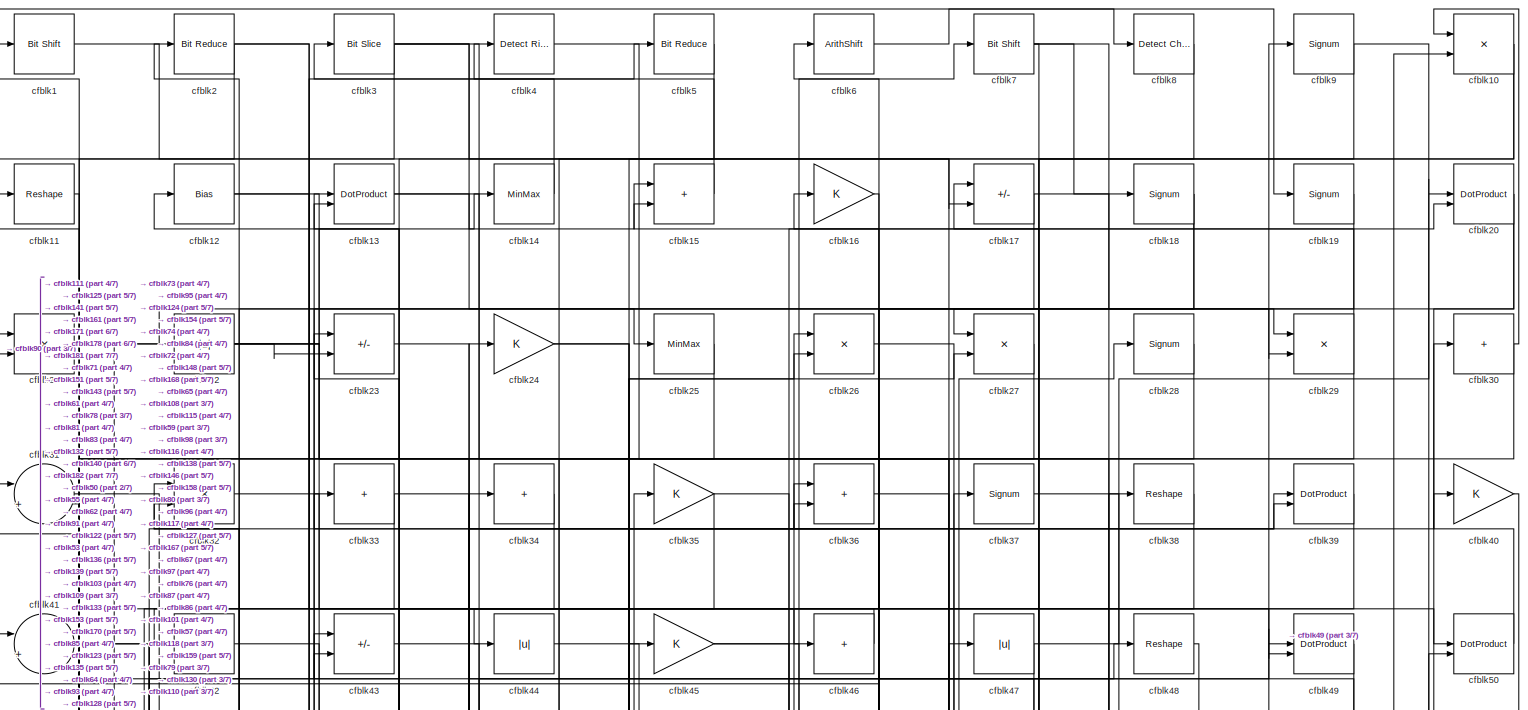
[diagram: root canvas - part 1/7, full width, top band]
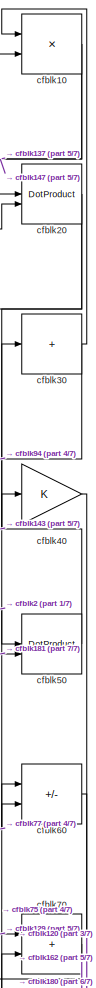
[diagram: root canvas - part 2/7, top right region]
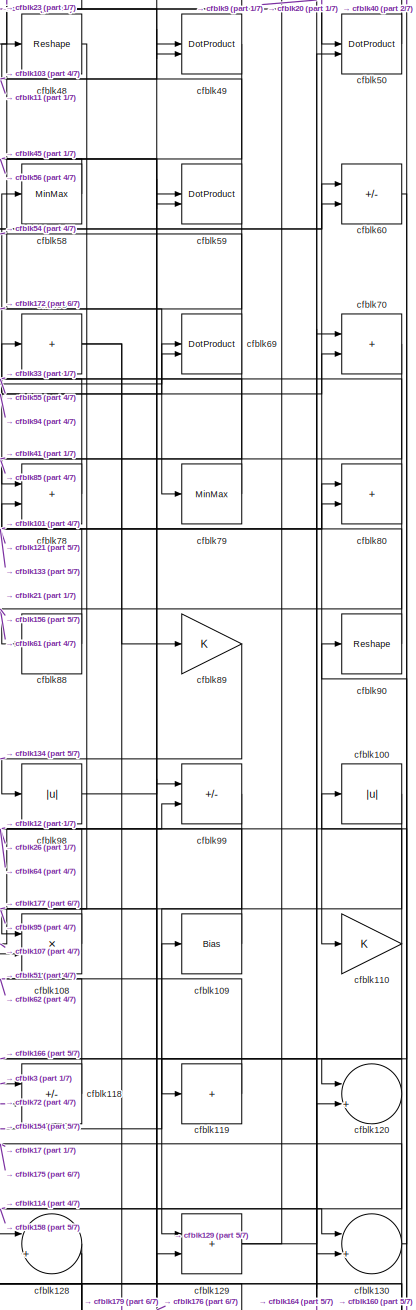
[diagram: root canvas - part 3/7, middle right region]
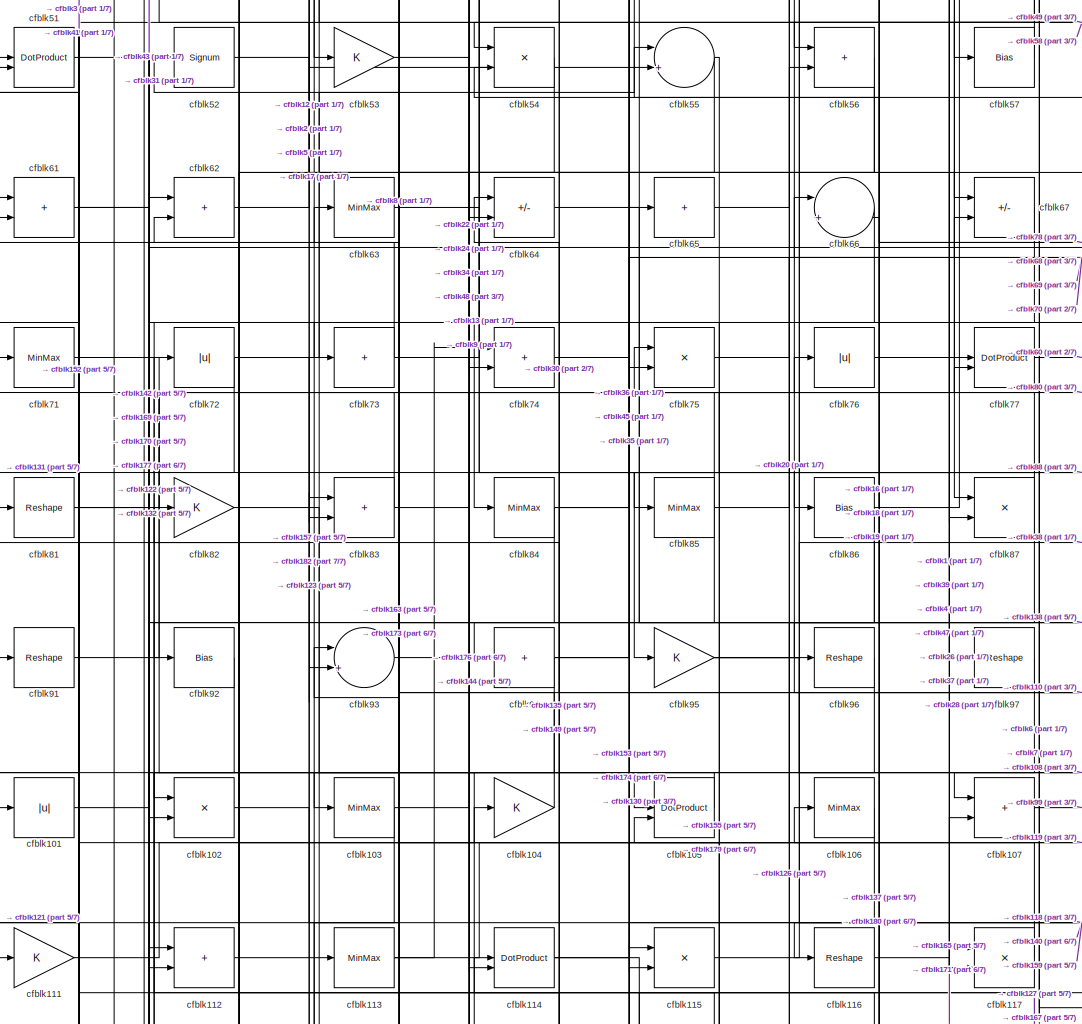
[diagram: root canvas - part 4/7, central region]
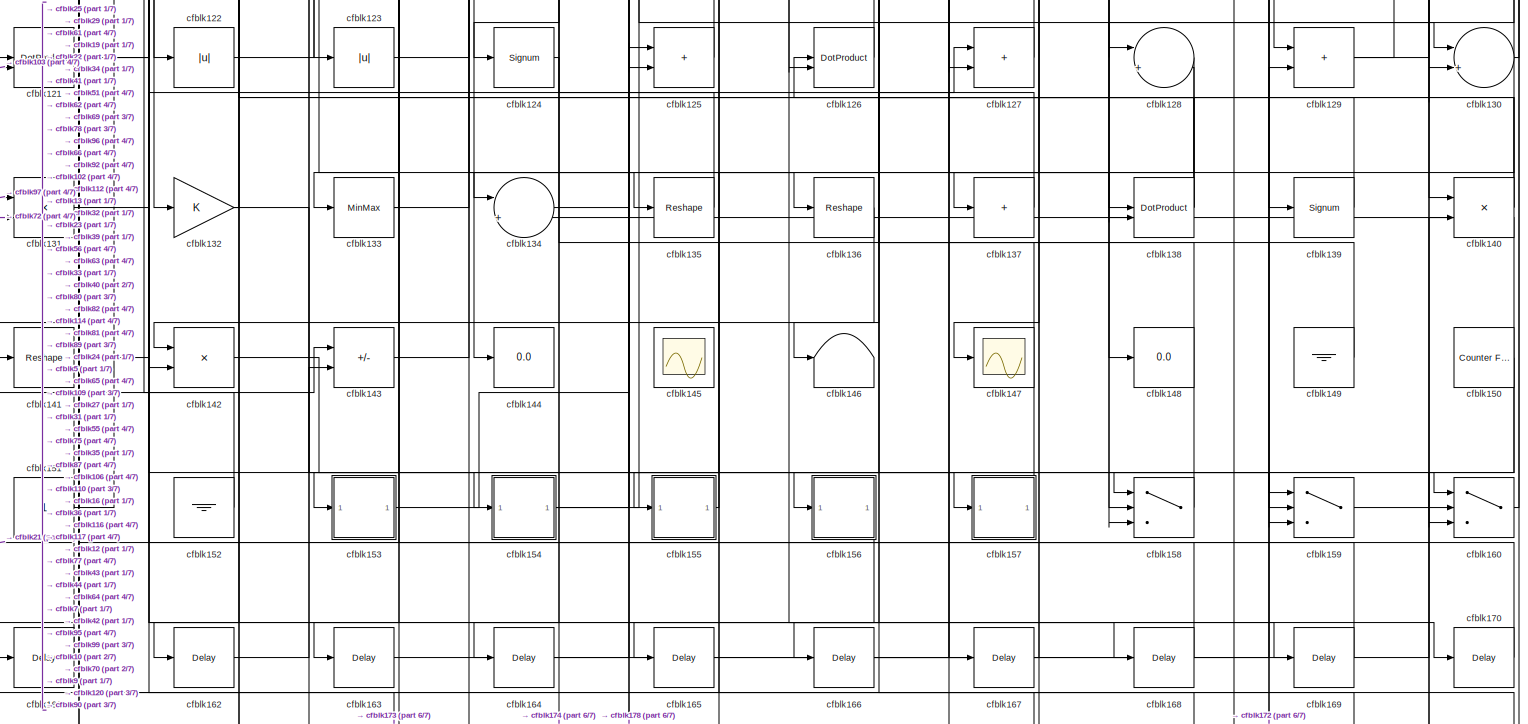
[diagram: root canvas - part 5/7, full width, bottom band]
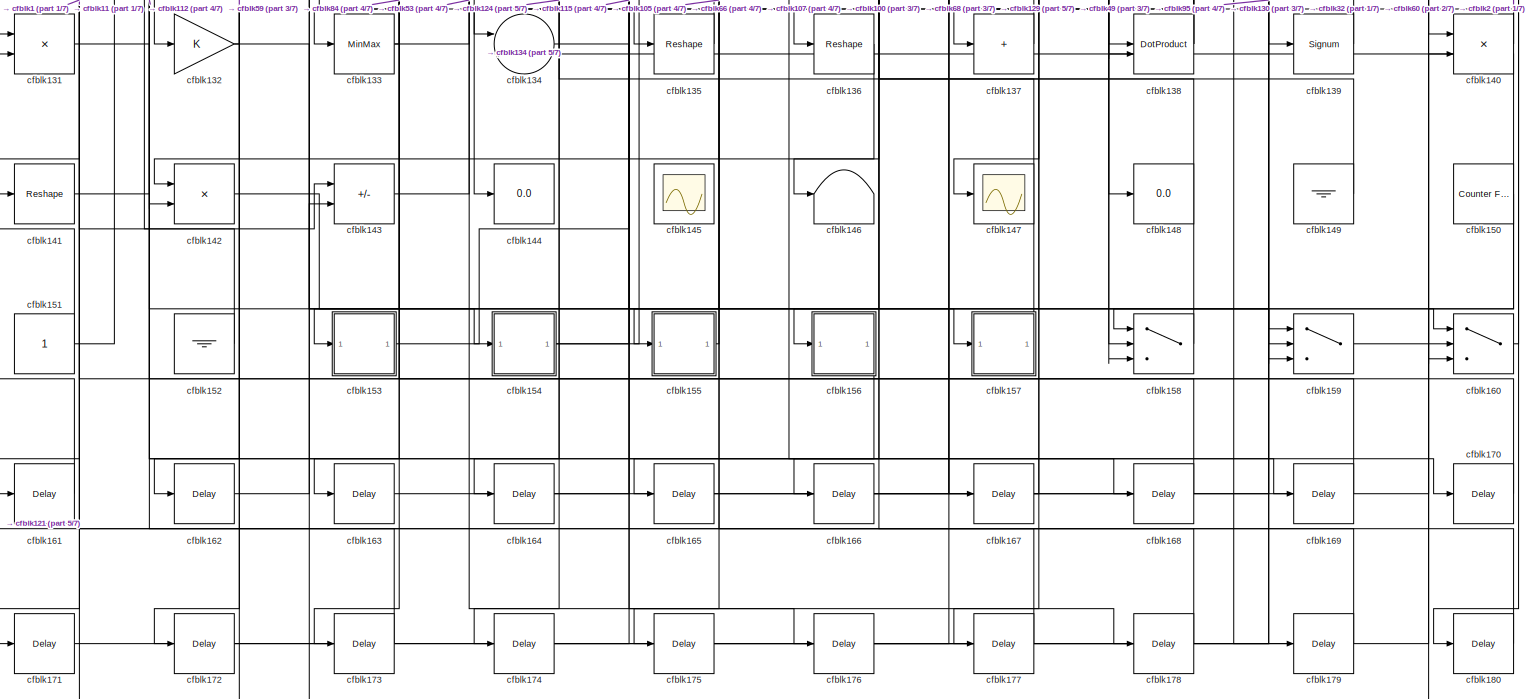
[diagram: root canvas - part 6/7, full width, bottom band]
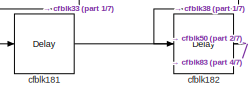
[diagram: root canvas - part 7/7, bottom left region]
MODEL slx_84282dd93710
KIND model
CONFIG AbsTol = auto
CONFIG EnableMultiTasking = off
CONFIG FixedStep = auto
CONFIG MaxStep = auto
CONFIG MinStep = auto
CONFIG RelTol = 1e-3
CONFIG SampleTimeConstraint = Unconstrained
CONFIG SolverName = VariableStepAuto
CONFIG StartTime = 0.0
CONFIG StopTime = 10.0
BLOCK [Reference] cfblk1  REF=hdlsllib/Logic and Bit
Operations/Bit Shift
  SourceBlock = hdlsllib/Logic and Bit\nOperations/Bit Shift
  SourceType = Bit Shift
BLOCK [Product] cfblk10
  Inputs = */
  RndMeth = Zero
  SaturateOnIntegerOverflow = on
BLOCK [Abs] cfblk100
  SaturateOnIntegerOverflow = off
BLOCK [Abs] cfblk101
  SaturateOnIntegerOverflow = off
BLOCK [Product] cfblk102
  Inputs = */
  RndMeth = Zero
  SaturateOnIntegerOverflow = on
BLOCK [MinMax] cfblk103
BLOCK [Gain] cfblk104
BLOCK [DotProduct] cfblk105
  OutDataTypeStr = Inherit: Inherit via internal rule
BLOCK [MinMax] cfblk106
BLOCK [Sum] cfblk107
  IconShape = rectangular
BLOCK [Product] cfblk108
  Inputs = */
  RndMeth = Zero
  SaturateOnIntegerOverflow = on
BLOCK [Bias] cfblk109
  Bias = 0.0
  SaturateOnIntegerOverflow = off
BLOCK [Reshape] cfblk11
BLOCK [Gain] cfblk110
BLOCK [Gain] cfblk111
BLOCK [Sum] cfblk112
  IconShape = rectangular
BLOCK [MinMax] cfblk113
BLOCK [DotProduct] cfblk114
  OutDataTypeStr = Inherit: Inherit via internal rule
BLOCK [Product] cfblk115
  Inputs = */
  RndMeth = Zero
  SaturateOnIntegerOverflow = on
BLOCK [Reshape] cfblk116
BLOCK [Product] cfblk117
  Inputs = */
  RndMeth = Zero
  SaturateOnIntegerOverflow = on
BLOCK [Sum] cfblk118
  IconShape = rectangular
  Inputs = +-
BLOCK [Sum] cfblk119
  IconShape = rectangular
  Inputs = +
BLOCK [Bias] cfblk12
  Bias = 0.0
  SaturateOnIntegerOverflow = off
BLOCK [Sum] cfblk120
  Inputs = |++
BLOCK [DotProduct] cfblk121
  OutDataTypeStr = Inherit: Inherit via internal rule
BLOCK [Abs] cfblk122
  SaturateOnIntegerOverflow = off
BLOCK [Abs] cfblk123
  SaturateOnIntegerOverflow = off
BLOCK [Signum] cfblk124
BLOCK [Sum] cfblk125
  IconShape = rectangular
BLOCK [DotProduct] cfblk126
  OutDataTypeStr = Inherit: Inherit via internal rule
BLOCK [Sum] cfblk127
  IconShape = rectangular
BLOCK [Sum] cfblk128
  Inputs = |++
BLOCK [Sum] cfblk129
  IconShape = rectangular
BLOCK [DotProduct] cfblk13
  OutDataTypeStr = Inherit: Inherit via internal rule
BLOCK [Sum] cfblk130
  Inputs = |++
BLOCK [Product] cfblk131
  Inputs = */
  RndMeth = Zero
  SaturateOnIntegerOverflow = on
BLOCK [Gain] cfblk132
BLOCK [MinMax] cfblk133
BLOCK [Sum] cfblk134
  Inputs = |++
BLOCK [Reshape] cfblk135
BLOCK [Reshape] cfblk136
BLOCK [Sum] cfblk137
  IconShape = rectangular
  Inputs = +
BLOCK [DotProduct] cfblk138
  OutDataTypeStr = Inherit: Inherit via internal rule
BLOCK [Signum] cfblk139
BLOCK [MinMax] cfblk14
BLOCK [Product] cfblk140
  Inputs = */
  RndMeth = Zero
  SaturateOnIntegerOverflow = on
BLOCK [Reshape] cfblk141
BLOCK [Product] cfblk142
  Inputs = */
  RndMeth = Zero
  SaturateOnIntegerOverflow = on
BLOCK [Sum] cfblk143
  IconShape = rectangular
  Inputs = +-
BLOCK [Display] cfblk144
  Decimation = 1
BLOCK [Scope] cfblk145
  Floating = on
  NumInputPorts = 1
  ScopeSpecificationString = Simulink.scopes.TimeScopeBlockCfg('CurrentConfiguration', extmgr.ConfigurationSet(extmgr.Configuration('Core','General UI',true,'FigureColor',[0.156862745098039 0.156862745098039 0.156862745098039]),extmgr.Configuration('Core','Source UI',true),extmgr.Configuration('Sources','WiredSimulink',true,'DataLoggingVariableName','ScopeData1','DataLoggingSaveFormat','StructureWithTime','DataLoggingLimitDat...<+2713ch>
BLOCK [Terminator] cfblk146
BLOCK [Scope] cfblk147
  Floating = off
  NumInputPorts = 1
  ScopeSpecificationString = Simulink.scopes.TimeScopeBlockCfg('CurrentConfiguration', extmgr.ConfigurationSet(extmgr.Configuration('Core','General UI',true),extmgr.Configuration('Core','Source UI',true),extmgr.Configuration('Sources','WiredSimulink',true,'DataLoggingVariableName','ScopeData2','DataLoggingSaveFormat','Array','DataLoggingLimitDataPoints',true,'DataLoggingDecimation','1'),extmgr.Configuration('Visuals','Time Do...<+868ch>
BLOCK [Display] cfblk148
  Decimation = 1
BLOCK [Ground] cfblk149
BLOCK [Sum] cfblk15
  IconShape = rectangular
BLOCK [Reference] cfblk150  REF=hdlsllib/Sources/Counter
Free-Running
  SourceBlock = hdlsllib/Sources/Counter\nFree-Running
  SourceType = Counter Free-Running
BLOCK [Constant] cfblk151
  SampleTime = -1
BLOCK [Ground] cfblk152
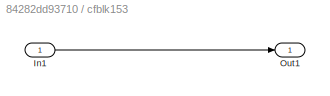
BLOCK [SubSystem] cfblk153
  LibrarySourceBlock = hdlsllib/Ports &\nSubsystems/Subsystem
BLOCK [Inport] cfblk153/In1
BLOCK [Outport] cfblk153/Out1
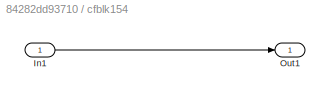
BLOCK [SubSystem] cfblk154
  LibrarySourceBlock = hdlsllib/Ports &\nSubsystems/Subsystem
BLOCK [Inport] cfblk154/In1
BLOCK [Outport] cfblk154/Out1
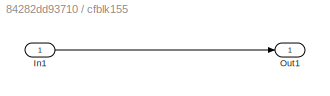
BLOCK [SubSystem] cfblk155
  LibrarySourceBlock = hdlsllib/Ports &\nSubsystems/Subsystem
BLOCK [Inport] cfblk155/In1
BLOCK [Outport] cfblk155/Out1
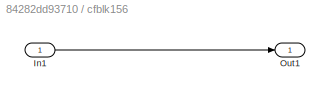
BLOCK [SubSystem] cfblk156
  LibrarySourceBlock = hdlsllib/Ports &\nSubsystems/Subsystem
BLOCK [Inport] cfblk156/In1
BLOCK [Outport] cfblk156/Out1
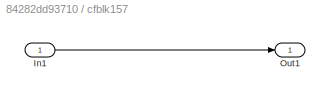
BLOCK [SubSystem] cfblk157
  LibrarySourceBlock = hdlsllib/Ports &\nSubsystems/Subsystem
BLOCK [Inport] cfblk157/In1
BLOCK [Outport] cfblk157/Out1
BLOCK [Switch] cfblk158
  InputSameDT = off
  SaturateOnIntegerOverflow = off
BLOCK [Switch] cfblk159
  InputSameDT = off
  SaturateOnIntegerOverflow = off
BLOCK [Gain] cfblk16
BLOCK [Switch] cfblk160
  InputSameDT = off
  SaturateOnIntegerOverflow = off
BLOCK [Delay] cfblk161
  InputPortMap = u0
  SampleTime = 1
BLOCK [Delay] cfblk162
  InputPortMap = u0
  SampleTime = 1
BLOCK [Delay] cfblk163
  InputPortMap = u0
  SampleTime = 1
BLOCK [Delay] cfblk164
  InputPortMap = u0
  SampleTime = 1
BLOCK [Delay] cfblk165
  InputPortMap = u0
  SampleTime = 1
BLOCK [Delay] cfblk166
  InputPortMap = u0
  SampleTime = 1
BLOCK [Delay] cfblk167
  InputPortMap = u0
  SampleTime = 1
BLOCK [Delay] cfblk168
  InputPortMap = u0
  SampleTime = 1
BLOCK [Delay] cfblk169
  InputPortMap = u0
  SampleTime = 1
BLOCK [Sum] cfblk17
  IconShape = rectangular
  Inputs = +-
BLOCK [Delay] cfblk170
  InputPortMap = u0
  SampleTime = 1
BLOCK [Delay] cfblk171
  InputPortMap = u0
  SampleTime = 1
BLOCK [Delay] cfblk172
  InputPortMap = u0
  SampleTime = 1
BLOCK [Delay] cfblk173
  InputPortMap = u0
  SampleTime = 1
BLOCK [Delay] cfblk174
  InputPortMap = u0
  SampleTime = 1
BLOCK [Delay] cfblk175
  InputPortMap = u0
  SampleTime = 1
BLOCK [Delay] cfblk176
  InputPortMap = u0
  SampleTime = 1
BLOCK [Delay] cfblk177
  InputPortMap = u0
  SampleTime = 1
BLOCK [Delay] cfblk178
  InputPortMap = u0
  SampleTime = 1
BLOCK [Delay] cfblk179
  InputPortMap = u0
  SampleTime = 1
BLOCK [Signum] cfblk18
BLOCK [Delay] cfblk180
  InputPortMap = u0
  SampleTime = 1
BLOCK [Delay] cfblk181
  InputPortMap = u0
  SampleTime = 1
BLOCK [Delay] cfblk182
  InputPortMap = u0
  SampleTime = 1
BLOCK [Signum] cfblk19
BLOCK [Reference] cfblk2  REF=hdlsllib/Logic and Bit
Operations/Bit Reduce
  SourceBlock = hdlsllib/Logic and Bit\nOperations/Bit Reduce
  SourceType = Bit Reduce
BLOCK [DotProduct] cfblk20
  OutDataTypeStr = Inherit: Inherit via internal rule
BLOCK [Product] cfblk21
  Inputs = */
  RndMeth = Zero
  SaturateOnIntegerOverflow = on
BLOCK [Abs] cfblk22
  SaturateOnIntegerOverflow = off
BLOCK [Sum] cfblk23
  IconShape = rectangular
  Inputs = +-
BLOCK [Gain] cfblk24
BLOCK [MinMax] cfblk25
BLOCK [Product] cfblk26
  Inputs = */
  RndMeth = Zero
  SaturateOnIntegerOverflow = on
BLOCK [Product] cfblk27
  Inputs = */
  RndMeth = Zero
  SaturateOnIntegerOverflow = on
BLOCK [Signum] cfblk28
BLOCK [Product] cfblk29
  Inputs = */
  RndMeth = Zero
  SaturateOnIntegerOverflow = on
BLOCK [Reference] cfblk3  REF=hdlsllib/Logic and Bit
Operations/Bit Slice
  SourceBlock = hdlsllib/Logic and Bit\nOperations/Bit Slice
  SourceType = Bit Slice
BLOCK [Sum] cfblk30
  IconShape = rectangular
  Inputs = +
BLOCK [Sum] cfblk31
  Inputs = |++
BLOCK [Product] cfblk32
  Inputs = */
  RndMeth = Zero
  SaturateOnIntegerOverflow = on
BLOCK [Sum] cfblk33
  IconShape = rectangular
  Inputs = +
BLOCK [Sum] cfblk34
  IconShape = rectangular
  Inputs = +
BLOCK [Gain] cfblk35
BLOCK [Sum] cfblk36
  IconShape = rectangular
BLOCK [Signum] cfblk37
BLOCK [Reshape] cfblk38
BLOCK [DotProduct] cfblk39
  OutDataTypeStr = Inherit: Inherit via internal rule
BLOCK [Reference] cfblk4  REF=hdlsllib/Logic and Bit
Operations/Detect Rise
Positive
  SourceBlock = hdlsllib/Logic and Bit\nOperations/Detect Rise\nPositive
  SourceType = Detect Rise Positive
BLOCK [Gain] cfblk40
BLOCK [Sum] cfblk41
  Inputs = |++
BLOCK [Sum] cfblk42
  IconShape = rectangular
  Inputs = +
BLOCK [Sum] cfblk43
  IconShape = rectangular
  Inputs = +-
BLOCK [Abs] cfblk44
  SaturateOnIntegerOverflow = off
BLOCK [Gain] cfblk45
BLOCK [Sum] cfblk46
  IconShape = rectangular
  Inputs = +
BLOCK [Abs] cfblk47
  SaturateOnIntegerOverflow = off
BLOCK [Reshape] cfblk48
BLOCK [DotProduct] cfblk49
  OutDataTypeStr = Inherit: Inherit via internal rule
BLOCK [Reference] cfblk5  REF=hdlsllib/Logic and Bit
Operations/Bit Reduce
  SourceBlock = hdlsllib/Logic and Bit\nOperations/Bit Reduce
  SourceType = Bit Reduce
BLOCK [DotProduct] cfblk50
  OutDataTypeStr = Inherit: Inherit via internal rule
BLOCK [DotProduct] cfblk51
  OutDataTypeStr = Inherit: Inherit via internal rule
BLOCK [Signum] cfblk52
BLOCK [Gain] cfblk53
BLOCK [Product] cfblk54
  Inputs = */
  RndMeth = Zero
  SaturateOnIntegerOverflow = on
BLOCK [Sum] cfblk55
  Inputs = |++
BLOCK [Sum] cfblk56
  IconShape = rectangular
BLOCK [Bias] cfblk57
  Bias = 0.0
  SaturateOnIntegerOverflow = off
BLOCK [MinMax] cfblk58
BLOCK [DotProduct] cfblk59
  OutDataTypeStr = Inherit: Inherit via internal rule
BLOCK [ArithShift] cfblk6
  BitShiftNumber = 8
  InputPortMap = u0
BLOCK [Sum] cfblk60
  IconShape = rectangular
  Inputs = +-
BLOCK [Sum] cfblk61
  IconShape = rectangular
BLOCK [Sum] cfblk62
  IconShape = rectangular
BLOCK [MinMax] cfblk63
BLOCK [Sum] cfblk64
  IconShape = rectangular
  Inputs = +-
BLOCK [Sum] cfblk65
  IconShape = rectangular
  Inputs = +
BLOCK [Sum] cfblk66
  Inputs = |++
BLOCK [Sum] cfblk67
  IconShape = rectangular
  Inputs = +-
BLOCK [Sum] cfblk68
  IconShape = rectangular
  Inputs = +
BLOCK [DotProduct] cfblk69
  OutDataTypeStr = Inherit: Inherit via internal rule
BLOCK [Reference] cfblk7  REF=hdlsllib/Logic and Bit
Operations/Bit Shift
  SourceBlock = hdlsllib/Logic and Bit\nOperations/Bit Shift
  SourceType = Bit Shift
BLOCK [Sum] cfblk70
  IconShape = rectangular
BLOCK [MinMax] cfblk71
BLOCK [Abs] cfblk72
  SaturateOnIntegerOverflow = off
BLOCK [Sum] cfblk73
  IconShape = rectangular
  Inputs = +
BLOCK [Sum] cfblk74
  IconShape = rectangular
BLOCK [Product] cfblk75
  Inputs = */
  RndMeth = Zero
  SaturateOnIntegerOverflow = on
BLOCK [Abs] cfblk76
  SaturateOnIntegerOverflow = off
BLOCK [DotProduct] cfblk77
  OutDataTypeStr = Inherit: Inherit via internal rule
BLOCK [Sum] cfblk78
  IconShape = rectangular
BLOCK [MinMax] cfblk79
BLOCK [Reference] cfblk8  REF=simulink/Logic and Bit
Operations/Detect
Change
  LibrarySourceBlock = hdlsllib/Logic and Bit\nOperations/Detect\nChange
  SourceBlock = simulink/Logic and Bit\nOperations/Detect\nChange
  SourceType = Detect Change
BLOCK [Sum] cfblk80
  IconShape = rectangular
BLOCK [Reshape] cfblk81
BLOCK [Gain] cfblk82
BLOCK [Sum] cfblk83
  IconShape = rectangular
BLOCK [MinMax] cfblk84
BLOCK [MinMax] cfblk85
BLOCK [Bias] cfblk86
  Bias = 0.0
  SaturateOnIntegerOverflow = off
BLOCK [Product] cfblk87
  Inputs = */
  RndMeth = Zero
  SaturateOnIntegerOverflow = on
BLOCK [Bias] cfblk88
  Bias = 0.0
  SaturateOnIntegerOverflow = off
BLOCK [Gain] cfblk89
BLOCK [Signum] cfblk9
BLOCK [Reshape] cfblk90
BLOCK [Reshape] cfblk91
BLOCK [Bias] cfblk92
  Bias = 0.0
  SaturateOnIntegerOverflow = off
BLOCK [Sum] cfblk93
  Inputs = |++
BLOCK [Sum] cfblk94
  IconShape = rectangular
  Inputs = +
BLOCK [Gain] cfblk95
BLOCK [Reshape] cfblk96
BLOCK [Reshape] cfblk97
BLOCK [Abs] cfblk98
  SaturateOnIntegerOverflow = off
BLOCK [Sum] cfblk99
  IconShape = rectangular
  Inputs = +-
LINE cfblk100:1 -> cfblk177:1
LINE cfblk101:1 -> cfblk80:1
LINE cfblk102:1 -> cfblk157:1
NET cfblk103:1 -> cfblk121:2, cfblk48:1
LINE cfblk104:1 -> cfblk52:1
LINE cfblk105:1 -> cfblk102:1
LINE cfblk106:1 -> cfblk115:2
LINE cfblk107:1 -> cfblk99:2
LINE cfblk108:1 -> cfblk26:1
LINE cfblk109:1 -> cfblk12:1
NET cfblk10:1 -> cfblk137:1, cfblk147:1
NET cfblk110:1 -> cfblk166:1, cfblk64:1
LINE cfblk111:1 -> cfblk104:1
LINE cfblk112:1 -> cfblk123:1
NET cfblk113:1 -> cfblk56:2, cfblk74:1
NET cfblk114:1 -> cfblk130:1, cfblk67:2
LINE cfblk115:1 -> cfblk7:1
LINE cfblk116:1 -> cfblk138:2
LINE cfblk117:1 -> cfblk93:1
LINE cfblk118:1 -> cfblk51:1
LINE cfblk119:1 -> cfblk62:2
LINE cfblk11:1 -> cfblk171:1
NET cfblk120:1 -> cfblk119:1, cfblk158:3
NET cfblk121:1 -> cfblk69:1, cfblk78:2
LINE cfblk122:1 -> cfblk13:1
LINE cfblk123:1 -> cfblk39:1
LINE cfblk124:1 -> cfblk174:1
LINE cfblk125:1 -> cfblk31:1
LINE cfblk126:1 -> cfblk82:1
LINE cfblk127:1 -> cfblk72:1
LINE cfblk128:1 -> cfblk164:1
NET cfblk129:1 -> cfblk10:2, cfblk70:1
NET cfblk12:1 -> cfblk127:2, cfblk67:1
NET cfblk130:1 -> cfblk100:1, cfblk175:1, cfblk17:1
LINE cfblk131:1 -> cfblk169:1
NET cfblk132:1 -> cfblk159:3, cfblk32:2
NET cfblk133:1 -> cfblk23:1, cfblk80:2
LINE cfblk134:1 -> cfblk178:1
LINE cfblk135:1 -> cfblk114:1
LINE cfblk136:1 -> cfblk142:1
LINE cfblk137:1 -> cfblk106:1
NET cfblk138:1 -> cfblk128:2, cfblk36:1, cfblk63:1
LINE cfblk139:1 -> cfblk126:1
NET cfblk13:1 -> cfblk15:2, cfblk95:1
NET cfblk140:1 -> cfblk2:1, cfblk32:1
LINE cfblk141:1 -> cfblk127:1
LINE cfblk142:1 -> cfblk160:1
LINE cfblk143:1 -> cfblk40:1
LINE cfblk149:1 -> cfblk81:1
LINE cfblk14:1 -> cfblk3:1
NET cfblk150:1 -> cfblk134:2, cfblk158:1, cfblk160:3
NET cfblk151:1 -> cfblk19:1, cfblk22:1
LINE cfblk152:1 -> cfblk61:2
LINE cfblk153/In1:1 -> cfblk153/Out1:1
LINE cfblk153:1 -> cfblk65:1
LINE cfblk154/In1:1 -> cfblk154/Out1:1
NET cfblk154:1 -> cfblk109:1, cfblk27:2
LINE cfblk155/In1:1 -> cfblk155/Out1:1
LINE cfblk155:1 -> cfblk75:1
LINE cfblk156/In1:1 -> cfblk156/Out1:1
LINE cfblk156:1 -> cfblk165:1
LINE cfblk157/In1:1 -> cfblk157/Out1:1
LINE cfblk157:1 -> cfblk66:2
LINE cfblk158:1 -> cfblk16:1
LINE cfblk159:1 -> cfblk160:2
LINE cfblk15:1 -> cfblk4:1
LINE cfblk160:1 -> cfblk90:1
LINE cfblk161:1 -> cfblk21:1
LINE cfblk162:1 -> cfblk143:2
LINE cfblk163:1 -> cfblk125:1
LINE cfblk164:1 -> cfblk120:2
LINE cfblk165:1 -> cfblk117:1
LINE cfblk166:1 -> cfblk99:1
LINE cfblk167:1 -> cfblk77:2
LINE cfblk168:1 -> cfblk31:2
LINE cfblk169:1 -> cfblk62:1
LINE cfblk16:1 -> cfblk86:1
LINE cfblk170:1 -> cfblk13:2
LINE cfblk171:1 -> cfblk107:2
LINE cfblk172:1 -> cfblk129:2
LINE cfblk173:1 -> cfblk121:1
LINE cfblk174:1 -> cfblk115:1
LINE cfblk175:1 -> cfblk140:2
LINE cfblk176:1 -> cfblk49:1
LINE cfblk177:1 -> cfblk112:1
LINE cfblk178:1 -> cfblk1:1
LINE cfblk179:1 -> cfblk105:2
NET cfblk17:1 -> cfblk29:2, cfblk53:1
LINE cfblk180:1 -> cfblk66:1
LINE cfblk181:1 -> cfblk50:2
LINE cfblk182:1 -> cfblk83:1
NET cfblk18:1 -> cfblk42:1, cfblk96:1
LINE cfblk19:1 -> cfblk116:1
LINE cfblk1:1 -> cfblk117:2
NET cfblk20:1 -> cfblk110:1, cfblk27:1
LINE cfblk21:1 -> cfblk25:1
NET cfblk22:1 -> cfblk14:1, cfblk23:2, cfblk46:1, cfblk64:2
LINE cfblk23:1 -> cfblk49:2
NET cfblk24:1 -> cfblk158:2, cfblk87:2
LINE cfblk25:1 -> cfblk161:1
LINE cfblk26:1 -> cfblk87:1
LINE cfblk27:1 -> cfblk146:1
LINE cfblk28:1 -> cfblk71:1
NET cfblk29:1 -> cfblk141:1, cfblk15:1
NET cfblk2:1 -> cfblk50:1, cfblk55:2, cfblk91:1
NET cfblk30:1 -> cfblk10:1, cfblk94:1
LINE cfblk31:1 -> cfblk83:2
LINE cfblk32:1 -> cfblk136:1
NET cfblk33:1 -> cfblk135:1, cfblk181:1
LINE cfblk34:1 -> cfblk143:1
NET cfblk35:1 -> cfblk153:1, cfblk168:1
LINE cfblk36:1 -> cfblk167:1
LINE cfblk37:1 -> cfblk79:1
LINE cfblk38:1 -> cfblk182:1
LINE cfblk39:1 -> cfblk133:1
NET cfblk3:1 -> cfblk111:1, cfblk118:1, cfblk17:2, cfblk29:1
LINE cfblk40:1 -> cfblk120:1
NET cfblk41:1 -> cfblk154:1, cfblk78:1
LINE cfblk42:1 -> cfblk139:1
LINE cfblk43:1 -> cfblk128:1
LINE cfblk44:1 -> cfblk148:1
NET cfblk45:1 -> cfblk59:2, cfblk98:1
LINE cfblk46:1 -> cfblk44:1
NET cfblk47:1 -> cfblk101:1, cfblk20:1
LINE cfblk48:1 -> cfblk108:1
LINE cfblk49:1 -> cfblk54:1
LINE cfblk4:1 -> cfblk97:1
LINE cfblk50:1 -> cfblk30:1
LINE cfblk51:1 -> cfblk170:1
LINE cfblk52:1 -> cfblk93:2
LINE cfblk53:1 -> cfblk176:1
LINE cfblk54:1 -> cfblk73:1
NET cfblk55:1 -> cfblk155:1, cfblk74:2
NET cfblk56:1 -> cfblk163:1, cfblk92:1
LINE cfblk57:1 -> cfblk6:1
LINE cfblk58:1 -> cfblk56:1
NET cfblk59:1 -> cfblk11:1, cfblk172:1
LINE cfblk5:1 -> cfblk125:2
LINE cfblk60:1 -> cfblk180:1
NET cfblk61:1 -> cfblk43:2, cfblk88:1
LINE cfblk62:1 -> cfblk5:1
LINE cfblk63:1 -> cfblk75:2
LINE cfblk64:1 -> cfblk138:1
LINE cfblk65:1 -> cfblk20:2
LINE cfblk66:1 -> cfblk122:1
LINE cfblk67:1 -> cfblk84:1
NET cfblk68:1 -> cfblk179:1, cfblk89:1
NET cfblk69:1 -> cfblk54:2, cfblk85:1
LINE cfblk6:1 -> cfblk8:1
LINE cfblk70:1 -> cfblk162:1
LINE cfblk71:1 -> cfblk105:1
NET cfblk72:1 -> cfblk118:2, cfblk131:2, cfblk35:1
NET cfblk73:1 -> cfblk41:2, cfblk9:1
LINE cfblk74:1 -> cfblk26:2
LINE cfblk75:1 -> cfblk70:2
LINE cfblk76:1 -> cfblk37:1
NET cfblk77:1 -> cfblk107:1, cfblk60:1, cfblk60:2
LINE cfblk78:1 -> cfblk55:1
LINE cfblk79:1 -> cfblk33:1
NET cfblk7:1 -> cfblk159:2, cfblk18:1, cfblk57:1
NET cfblk80:1 -> cfblk156:1, cfblk41:1
NET cfblk81:1 -> cfblk39:2, cfblk47:1
LINE cfblk82:1 -> cfblk144:1
NET cfblk83:1 -> cfblk24:1, cfblk51:2
NET cfblk84:1 -> cfblk173:1, cfblk36:2, cfblk45:1
NET cfblk85:1 -> cfblk112:2, cfblk43:1, cfblk68:1
NET cfblk86:1 -> cfblk102:2, cfblk113:1, cfblk28:1
NET cfblk87:1 -> cfblk126:2, cfblk61:1
LINE cfblk88:1 -> cfblk58:1
LINE cfblk89:1 -> cfblk134:1
LINE cfblk8:1 -> cfblk103:1
LINE cfblk90:1 -> cfblk21:2
LINE cfblk91:1 -> cfblk77:1
LINE cfblk92:1 -> cfblk132:1
LINE cfblk93:1 -> cfblk34:1
NET cfblk94:1 -> cfblk114:2, cfblk69:2, cfblk76:1
NET cfblk95:1 -> cfblk108:2, cfblk140:1, cfblk159:1, cfblk38:1
LINE cfblk96:1 -> cfblk142:2
LINE cfblk97:1 -> cfblk131:1
LINE cfblk98:1 -> cfblk59:1
LINE cfblk99:1 -> cfblk129:1
NET cfblk9:1 -> cfblk124:1, cfblk130:2
note: NET lines group one-source signal fan-out (src -> all destinations, sorted); 1:1 wires keep LINE
